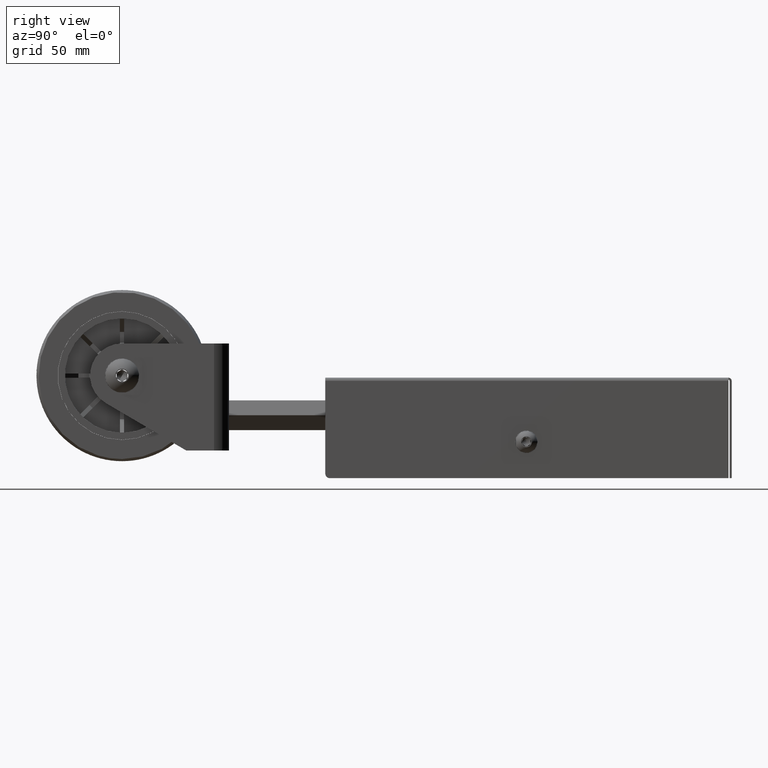
[diagram: clean part render]
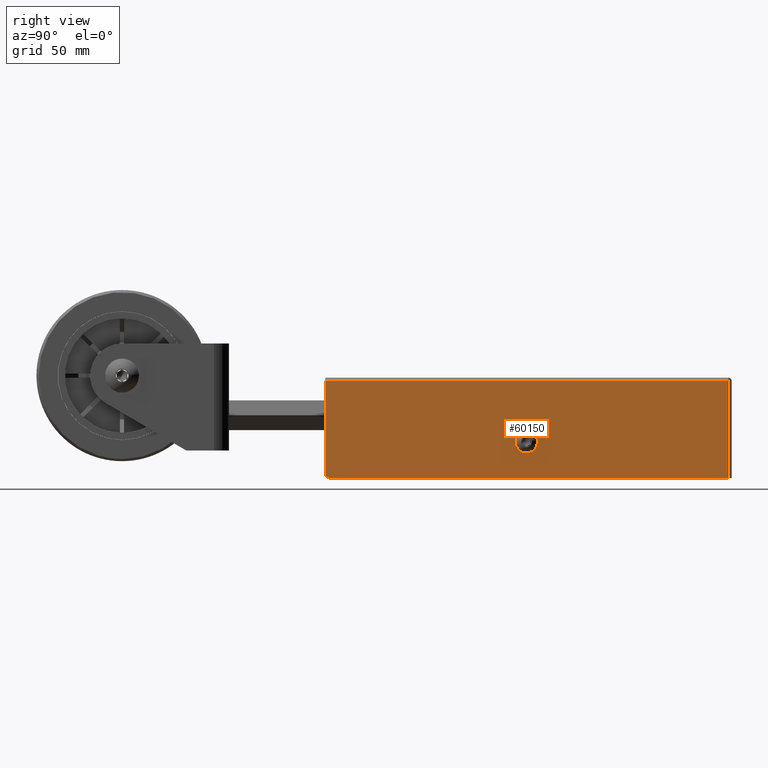
[diagram: same view with one face highlighted and labeled with its STEP entity id]
A machine part, right view. The second image highlights one B-rep face of the part: STEP entity #60150.
In plain terms, the highlighted planar face has unit normal (-1, -0, -0).
Its self-contained STEP definition (entity closure, byte-faithful):
#11 = VERTEX_POINT ( 'NONE', #20464 ) ;
#359 = EDGE_CURVE ( 'NONE', #19846, #21220, #40719, .T. ) ;
#1428 = DIRECTION ( 'NONE',  ( -3.469446951953613800E-015, 0.0000000000000000000, 1.000000000000000000 ) ) ;
#1703 = EDGE_CURVE ( 'NONE', #29619, #13599, #59551, .T. ) ;
#2647 = CARTESIAN_POINT ( 'NONE',  ( 25.00000000000015300, -95.00000000000000000, -44.00000000000000000 ) ) ;
#3836 = DIRECTION ( 'NONE',  ( 3.469446951953613800E-015, 0.0000000000000000000, -1.000000000000000000 ) ) ;
#3902 = CARTESIAN_POINT ( 'NONE',  ( 25.00000000000010700, -4.549999999999998900, -30.05000000000000100 ) ) ;
#4014 = VERTEX_POINT ( 'NONE', #66392 ) ;
#6116 = CARTESIAN_POINT ( 'NONE',  ( 25.00000000000016000, -93.00000000000000000, -46.00000000000000000 ) ) ;
#7249 = LINE ( 'NONE', #24492, #68854 ) ;
#7299 = LINE ( 'NONE', #44057, #56508 ) ;
#8803 = VERTEX_POINT ( 'NONE', #52898 ) ;
#11195 = CARTESIAN_POINT ( 'NONE',  ( 25.00000000000010700, 2.549999999999996700, -30.05000000000000100 ) ) ;
#12223 = EDGE_LOOP ( 'NONE', ( #64996, #38718, #22751, #49875, #66400 ) ) ;
#13377 = EDGE_CURVE ( 'NONE', #50812, #76979, #74506, .T. ) ;
#13599 = VERTEX_POINT ( 'NONE', #61412 ) ;
#15746 = DIRECTION ( 'NONE',  ( 8.758115402030106700E-047, 1.000000000000000000, -1.472444329741587200E-016 ) ) ;
#16965 = AXIS2_PLACEMENT_3D ( 'NONE', #30037, #46727, #42231 ) ;
#17107 = CARTESIAN_POINT ( 'NONE',  ( 25.00000000000009900, -1.000000000000000900, -27.95000000000000300 ) ) ;
#18555 = DIRECTION ( 'NONE',  ( -3.469446951953611000E-015, 0.0000000000000000000, 1.000000000000000000 ) ) ;
#18909 = CARTESIAN_POINT ( 'NONE',  ( 25.00000000000000000, 93.50000000000000000, -0.5000000000000213200 ) ) ;
#19159 = CARTESIAN_POINT ( 'NONE',  ( 25.00000000000000000, 93.50000000000000000, 9.020562075079396900E-014 ) ) ;
#19846 = VERTEX_POINT ( 'NONE', #2647 ) ;
#20131 = LINE ( 'NONE', #18909, #32427 ) ;
#20464 = CARTESIAN_POINT ( 'NONE',  ( 25.00000000000000000, -95.00000000000000000, -0.4999999999999935100 ) ) ;
#21220 = VERTEX_POINT ( 'NONE', #6116 ) ;
#21822 = CARTESIAN_POINT ( 'NONE',  ( 25.00000000000016000, -6.938893903907228400E-015, -46.00000000000001400 ) ) ;
#22751 = ORIENTED_EDGE ( 'NONE', *, *, #70248, .T. ) ;
#24492 = CARTESIAN_POINT ( 'NONE',  ( 25.00000000000009900, 2.549999999999996700, -27.95000000000000300 ) ) ;
#27737 = AXIS2_PLACEMENT_3D ( 'NONE', #42259, #48349, #36457 ) ;
#28993 = DIRECTION ( 'NONE',  ( 1.000000000000000000, 5.108567491743330500E-031, 3.469446951953613800E-015 ) ) ;
#29092 = ORIENTED_EDGE ( 'NONE', *, *, #13377, .F. ) ;
#29517 = EDGE_CURVE ( 'NONE', #76979, #29619, #7249, .T. ) ;
#29619 = VERTEX_POINT ( 'NONE', #50181 ) ;
#30037 = CARTESIAN_POINT ( 'NONE',  ( 25.00000000000000000, 0.0000000000000000000, 9.020562075079396900E-014 ) ) ;
#30553 = PLANE ( 'NONE',  #16965 ) ;
#32427 = VECTOR ( 'NONE', #67693, 1000.000000000000000 ) ;
#34278 = EDGE_CURVE ( 'NONE', #8803, #4014, #36724, .T. ) ;
#34407 = AXIS2_PLACEMENT_3D ( 'NONE', #42893, #60141, #18555 ) ;
#36457 = DIRECTION ( 'NONE',  ( 3.909236002201254400E-015, 0.0000000000000000000, -1.000000000000000000 ) ) ;
#36724 = LINE ( 'NONE', #19159, #48103 ) ;
#37231 = DIRECTION ( 'NONE',  ( -3.304235192336779100E-015, -2.065146995210486900E-016, 1.000000000000000000 ) ) ;
#38718 = ORIENTED_EDGE ( 'NONE', *, *, #359, .T. ) ;
#40193 = VECTOR ( 'NONE', #45316, 1000.000000000000000 ) ;
#40719 = CIRCLE ( 'NONE', #34407, 2.000000000000001800 ) ;
#41117 = LINE ( 'NONE', #21822, #49628 ) ;
#41363 = ORIENTED_EDGE ( 'NONE', *, *, #68093, .F. ) ;
#42231 = DIRECTION ( 'NONE',  ( -3.469446951953613800E-015, 0.0000000000000000000, 1.000000000000000000 ) ) ;
#42259 = CARTESIAN_POINT ( 'NONE',  ( 25.00000000000010700, -1.000000000000000900, -30.05000000000000400 ) ) ;
#42893 = CARTESIAN_POINT ( 'NONE',  ( 25.00000000000015300, -93.00000000000000000, -44.00000000000000000 ) ) ;
#44057 = CARTESIAN_POINT ( 'NONE',  ( 25.00000000000000000, -95.00000000000000000, 9.020562075079396900E-014 ) ) ;
#44523 = CARTESIAN_POINT ( 'NONE',  ( 25.00000000000009900, -4.549999999999998900, -27.95000000000000300 ) ) ;
#45316 = DIRECTION ( 'NONE',  ( 3.304235192336779100E-015, 0.0000000000000000000, -1.000000000000000000 ) ) ;
#46433 = ORIENTED_EDGE ( 'NONE', *, *, #29517, .F. ) ;
#46727 = DIRECTION ( 'NONE',  ( -1.000000000000000000, -5.108567491743330500E-031, -3.469446951953613800E-015 ) ) ;
#48103 = VECTOR ( 'NONE', #1428, 1000.000000000000000 ) ;
#48349 = DIRECTION ( 'NONE',  ( 1.000000000000000000, 5.108567491743330500E-031, 3.469446951953613800E-015 ) ) ;
#49628 = VECTOR ( 'NONE', #15746, 1000.000000000000000 ) ;
#49875 = ORIENTED_EDGE ( 'NONE', *, *, #34278, .T. ) ;
#50181 = CARTESIAN_POINT ( 'NONE',  ( 25.00000000000009900, 2.549999999999996700, -27.95000000000000300 ) ) ;
#50812 = VERTEX_POINT ( 'NONE', #3902 ) ;
#52123 = FACE_OUTER_BOUND ( 'NONE', #12223, .T. ) ;
#52191 = EDGE_CURVE ( 'NONE', #11, #19846, #7299, .T. ) ;
#52898 = CARTESIAN_POINT ( 'NONE',  ( 25.00000000000016000, 93.50000000000000000, -46.00000000000002800 ) ) ;
#53385 = DIRECTION ( 'NONE',  ( 3.909236002201258300E-015, 0.0000000000000000000, -1.000000000000000000 ) ) ;
#54102 = ORIENTED_EDGE ( 'NONE', *, *, #1703, .F. ) ;
#56508 = VECTOR ( 'NONE', #3836, 1000.000000000000000 ) ;
#56936 = EDGE_CURVE ( 'NONE', #11, #4014, #20131, .T. ) ;
#59551 = CIRCLE ( 'NONE', #67993, 3.549999999999997600 ) ;
#60141 = DIRECTION ( 'NONE',  ( 1.000000000000000000, 5.108567491743330500E-031, 3.469446951953613800E-015 ) ) ;
#60150 = ADVANCED_FACE ( 'NONE', ( #76811, #52123 ), #30553, .F. ) ;
#61412 = CARTESIAN_POINT ( 'NONE',  ( 25.00000000000009900, -4.549999999999998900, -27.95000000000000300 ) ) ;
#64996 = ORIENTED_EDGE ( 'NONE', *, *, #52191, .T. ) ;
#65860 = LINE ( 'NONE', #44523, #40193 ) ;
#66392 = CARTESIAN_POINT ( 'NONE',  ( 25.00000000000000000, 93.50000000000000000, -0.5000000000000143200 ) ) ;
#66400 = ORIENTED_EDGE ( 'NONE', *, *, #56936, .F. ) ;
#67693 = DIRECTION ( 'NONE',  ( -6.385709364679144500E-032, 1.000000000000000000, -1.288388788523889100E-016 ) ) ;
#67993 = AXIS2_PLACEMENT_3D ( 'NONE', #17107, #28993, #53385 ) ;
#68093 = EDGE_CURVE ( 'NONE', #13599, #50812, #65860, .T. ) ;
#68854 = VECTOR ( 'NONE', #37231, 1000.000000000000000 ) ;
#70248 = EDGE_CURVE ( 'NONE', #21220, #8803, #41117, .T. ) ;
#74506 = CIRCLE ( 'NONE', #27737, 3.550000000000001200 ) ;
#76811 = FACE_BOUND ( 'NONE', #77197, .T. ) ;
#76979 = VERTEX_POINT ( 'NONE', #11195 ) ;
#77197 = EDGE_LOOP ( 'NONE', ( #41363, #54102, #46433, #29092 ) ) ;